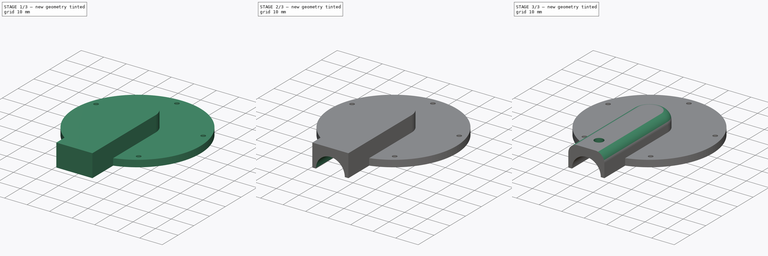
[diagram: build sequence overview — one tinted view per stage of 3, left to right]
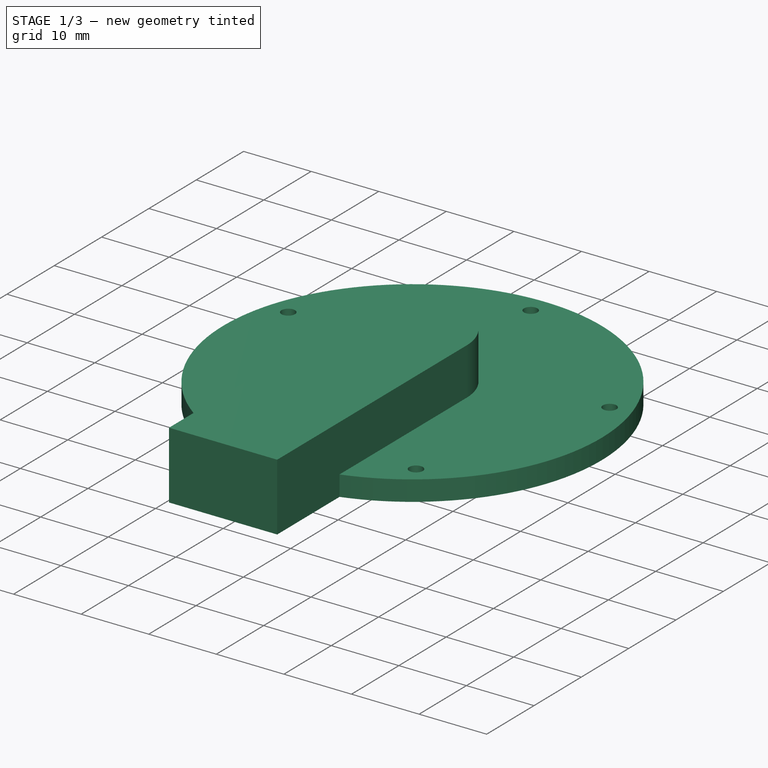
[diagram: stage 1 of 3 — iso view after this stage's code; geometry added in this stage tinted green]
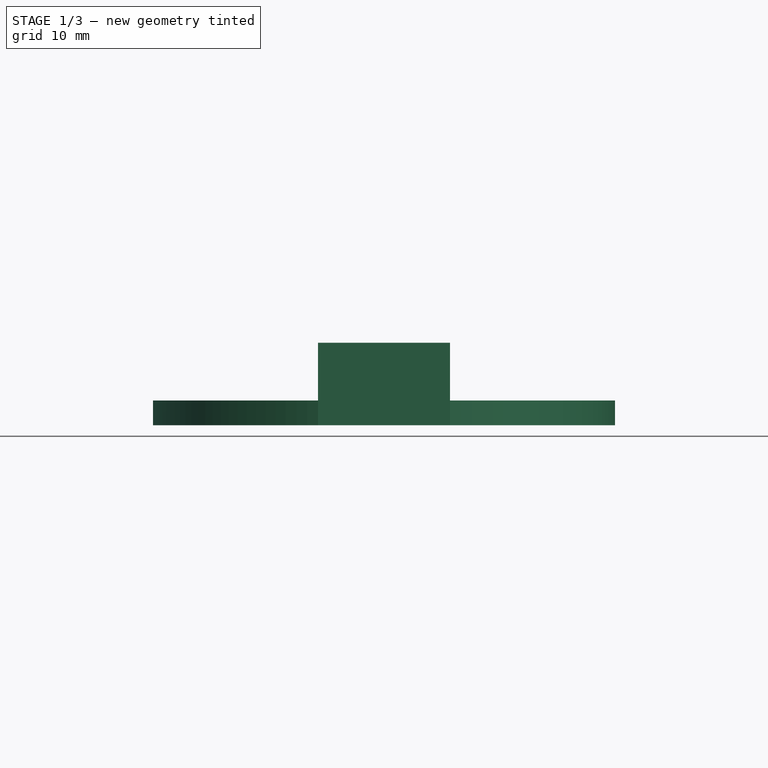
[diagram: stage 1 of 3 — front view after this stage's code; geometry added in this stage tinted green]
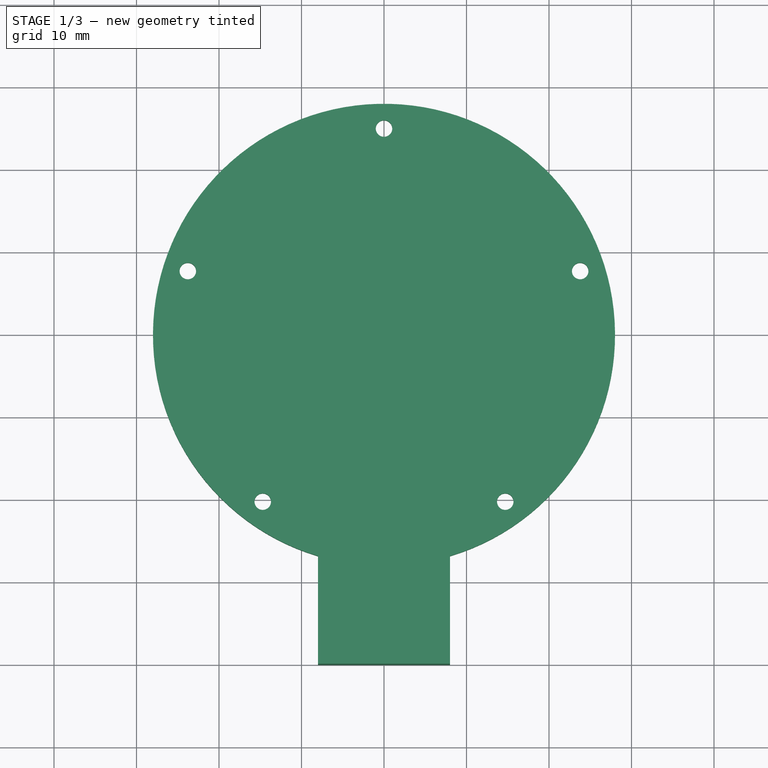
[diagram: stage 1 of 3 — top view after this stage's code; geometry added in this stage tinted green]
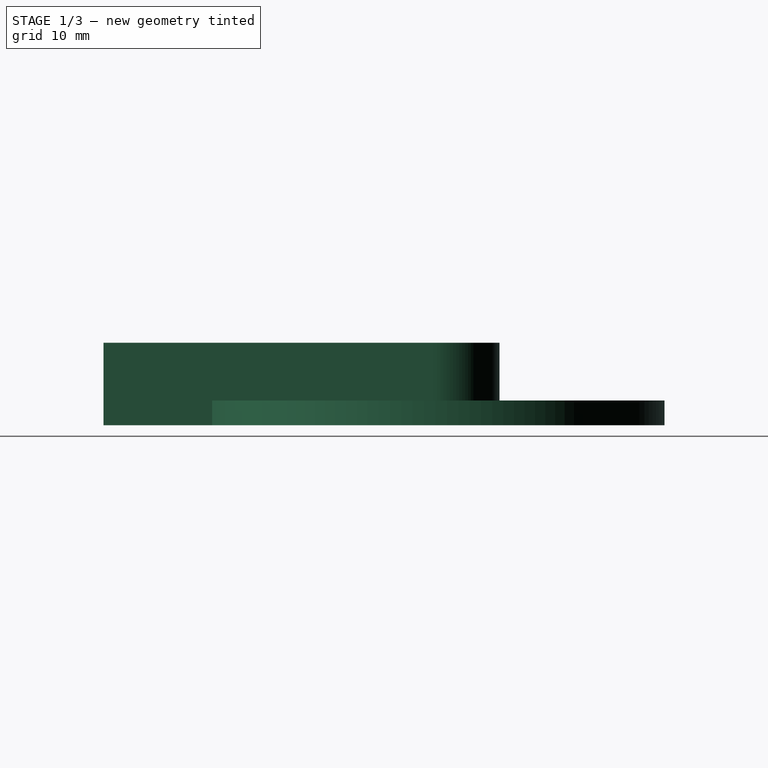
[diagram: stage 1 of 3 — right view after this stage's code; geometry added in this stage tinted green]
FCSTD DOCUMENT  (FreeCAD 0.19R24276 (Git))
Label: piezo_reproducer_partB_v0.5
License: All rights reserved
LicenseURL: http://en.wikipedia.org/wiki/All_rights_reserved
objects: Sketcher::SketchObject×4, PartDesign::Pad×2, PartDesign::Pocket×2, PartDesign::Chamfer×1, PartDesign::Fillet×1, PartDesign::Body×1, App::Part×1
note: 17 computed .brp shape members not serialized (recipe doc carries the construction recipe); baked Part::Feature solids carry a one-line shape summary decoded from their .brp

FEATURE [Sketcher::SketchObject] Sketch
  FullyConstrained = false
  MapMode = 5
  Support = -> [XY_Plane001]
  sketch-geometry (18):
    g0: LineSegment StartX=-8 StartY=-40 StartZ=0 EndX=8 EndY=-40 EndZ=0
    g1: LineSegment StartX=8 StartY=-40 StartZ=0 EndX=8 EndY=-26.8328 EndZ=0
    g2: LineSegment StartX=8 StartY=-26.8328 StartZ=0 EndX=-8 EndY=-26.8328 EndZ=0
    g3: LineSegment StartX=-8 StartY=-26.8328 StartZ=0 EndX=-8 EndY=-40 EndZ=0
    g4: ArcOfCircle CenterX=0 CenterY=0 CenterZ=0 NormalX=0 NormalY=0 NormalZ=1 AngleXU=0 Radius=28 StartAngle=5.00214 EndAngle=10.7058
    g5: Circle CenterX=0 CenterY=0 CenterZ=0 NormalX=0 NormalY=0 NormalZ=1 AngleXU=0 Radius=25
    g6: Circle CenterX=1.1e-15 CenterY=25 CenterZ=0 NormalX=0 NormalY=0 NormalZ=1 AngleXU=0 Radius=1
    g7: Circle CenterX=-23.7764 CenterY=7.72542 CenterZ=0 NormalX=0 NormalY=0 NormalZ=1 AngleXU=0 Radius=1
    g8: Circle CenterX=-14.6946 CenterY=-20.2254 CenterZ=0 NormalX=0 NormalY=0 NormalZ=1 AngleXU=0 Radius=1
    g9: Circle CenterX=14.6946 CenterY=-20.2254 CenterZ=0 NormalX=0 NormalY=0 NormalZ=1 AngleXU=0 Radius=1
    g10: Circle CenterX=23.7764 CenterY=7.72542 CenterZ=0 NormalX=0 NormalY=0 NormalZ=1 AngleXU=0 Radius=1
    g11: LineSegment StartX=14.6946 StartY=-20.2254 StartZ=0 EndX=-14.6946 EndY=-20.2254 EndZ=0
    g12: LineSegment StartX=-23.7764 StartY=7.72542 StartZ=0 EndX=-14.6946 EndY=-20.2254 EndZ=0
    g13: LineSegment StartX=0 StartY=25 StartZ=0 EndX=-23.7764 EndY=7.72542 EndZ=0
    g14: LineSegment StartX=23.7764 StartY=7.72542 StartZ=0 EndX=0 EndY=25 EndZ=0
    g15: LineSegment StartX=1.1e-15 StartY=25 StartZ=0 EndX=23.7764 EndY=7.72542 EndZ=0
    g16: LineSegment StartX=1.1e-15 StartY=25 StartZ=0 EndX=23.7764 EndY=7.72542 EndZ=0
    g17: LineSegment StartX=14.6946 StartY=-20.2254 StartZ=0 EndX=23.7764 EndY=7.72542 EndZ=0
  constraints (41):
    c: Coincident(g0,g1)
    c: Coincident(g1,g2)
    c: Coincident(g2,g3)
    c: Coincident(g3,g0)
    c: Horizontal(g2)
    c: Vertical(g1)
    c: Symmetric(g0,g0,g-2)
    c: DistanceX(g2,g2) = 16
    c: Radius(g4) = 28
    c: Coincident(g3,g4)
    c: Coincident(g1,g4)
    c: DistanceY(g0,g4) = 40
    c: Coincident(g5,g4)
    c: Radius(g5) = 25
    c: PointOnObject(g6,g5)
    c: Coincident(g4,g-1)
    c: PointOnObject(g7,g5)
    c: PointOnObject(g8,g5)
    c: PointOnObject(g9,g5)
    c: PointOnObject(g10,g5)
    c: Radius(g9) = 1
    c: Equal(g9,g8)
    c: Equal(g9,g7)
    c: Equal(g9,g6)
    c: Equal(g9,g10)
    c: Coincident(g11,g9)
    c: Coincident(g11,g8)
    c: Coincident(g12,g7)
    c: Coincident(g12,g8)
    c: Coincident(g13,g7)
    c: Coincident(g15,g6)
    c: Coincident(g16,g6)
    c: Coincident(g16,g10)
    c: Coincident(g17,g9)
    c: Coincident(g17,g10)
    c: Equal(g17,g11)
    c: Equal(g11,g12)
    c: Equal(g12,g13)
    c: Equal(g13,g14)
    c: Equal(g14,g16)
    c: Equal(g16,g15)
FEATURE [PartDesign::Pad] Pad
  Direction = (1,1,1)
  Length = 3
  Length2 = 100
  Profile = -> Sketch
  Type = 0
FEATURE [Sketcher::SketchObject] Sketch001
  ExternalGeometry = -> [Pad]
  FullyConstrained = false
  MapMode = 5
  Placement = pos=(0,0,3) rot=(0,0,1;0rad)
  Support = -> [Pad]
  sketch-geometry (4):
    g0: LineSegment StartX=-8 StartY=-40 StartZ=0 EndX=8 EndY=-40 EndZ=0
    g1: LineSegment StartX=8 StartY=-40 StartZ=0 EndX=8 EndY=0 EndZ=0
    g2: LineSegment StartX=-8 StartY=1e-15 StartZ=0 EndX=-8 EndY=-40 EndZ=0
    g3: ArcOfCircle CenterX=0 CenterY=0 CenterZ=0 NormalX=0 NormalY=0 NormalZ=1 AngleXU=0 Radius=8 StartAngle=0 EndAngle=3.14159
  constraints (8):
    c: Coincident(g0,g1)
    c: Coincident(g2,g0)
    c: Vertical(g1)
    c: Coincident(g0,g-3)
    c: PointOnObject(g1,g-1)
    c: Coincident(g0,g-4)
    c: Coincident(g3,g-1)
    c: Coincident(g3,g1)
FEATURE [PartDesign::Pad] Pad001
  BaseFeature = -> Pad
  Direction = (1,1,1)
  Length = 7
  Length2 = 100
  Profile = -> Sketch001
  Type = 0
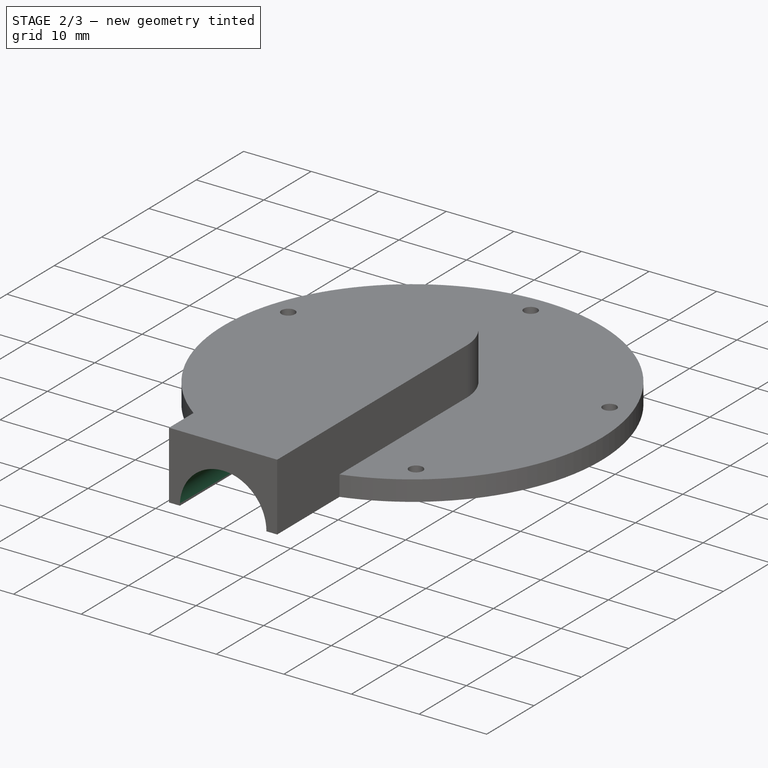
[diagram: stage 2 of 3 — iso view after this stage's code; geometry added in this stage tinted green]
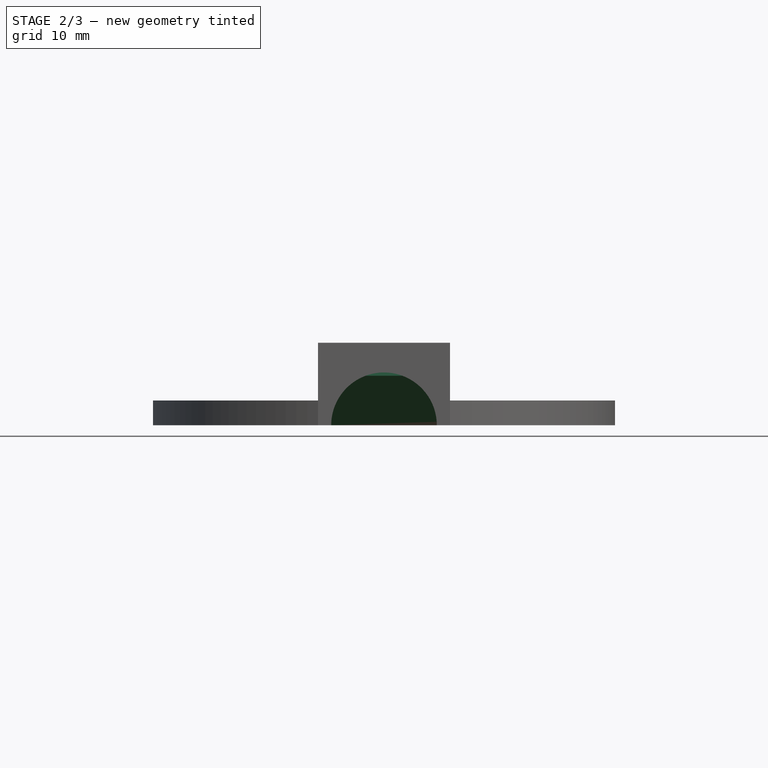
[diagram: stage 2 of 3 — front view after this stage's code; geometry added in this stage tinted green]
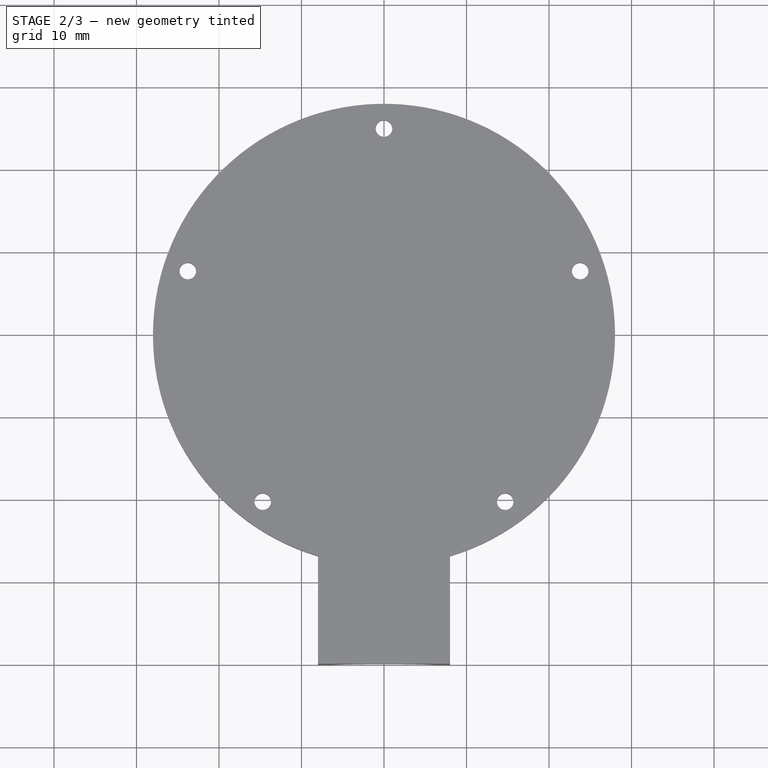
[diagram: stage 2 of 3 — top view after this stage's code; geometry added in this stage tinted green]
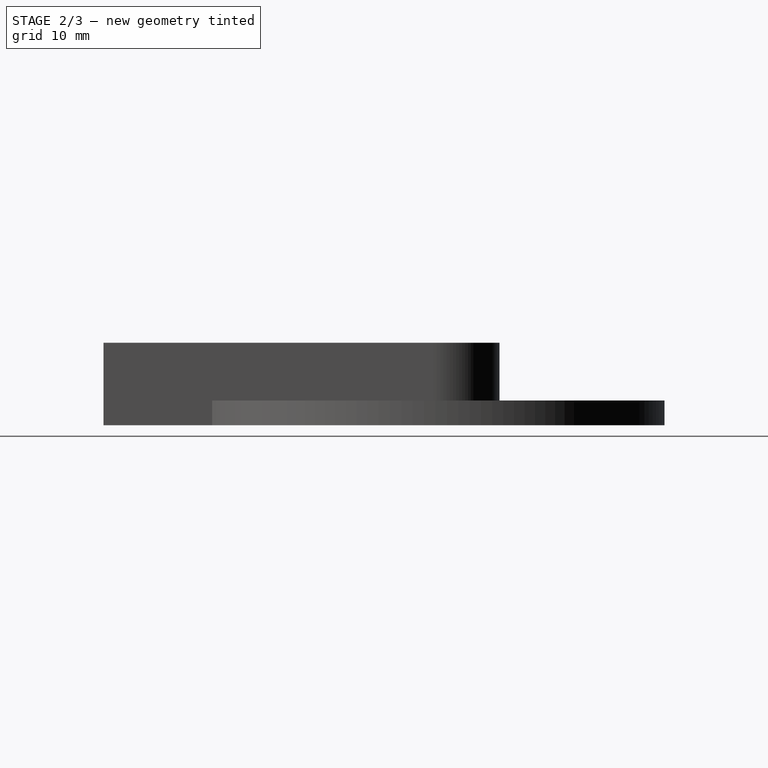
[diagram: stage 2 of 3 — right view after this stage's code; geometry added in this stage tinted green]
FEATURE [Sketcher::SketchObject] Sketch002
  FullyConstrained = true
  MapMode = 5
  Placement = pos=(0,-40,0) rot=(1,0,0;1.5708rad)
  Support = -> [Pad001]
  sketch-geometry (1):
    g0: Circle CenterX=0 CenterY=0 CenterZ=0 NormalX=0 NormalY=0 NormalZ=1 AngleXU=0 Radius=6.4
  constraints (2):
    c: Coincident(g0,g-1)
    c: Radius(g0) = 6.4
FEATURE [PartDesign::Pocket] Pocket
  BaseFeature = -> Pad001
  Length = 40
  Length2 = 100
  Profile = -> Sketch002
  Type = 0
FEATURE [PartDesign::Chamfer] Chamfer
  Angle = 45
  Base = -> Pocket [Edge6]
  BaseFeature = -> Pocket
  ChamferType = 0
  FlipDirection = false
  Size = 6
  Size2 = 1
  SupportTransform = false
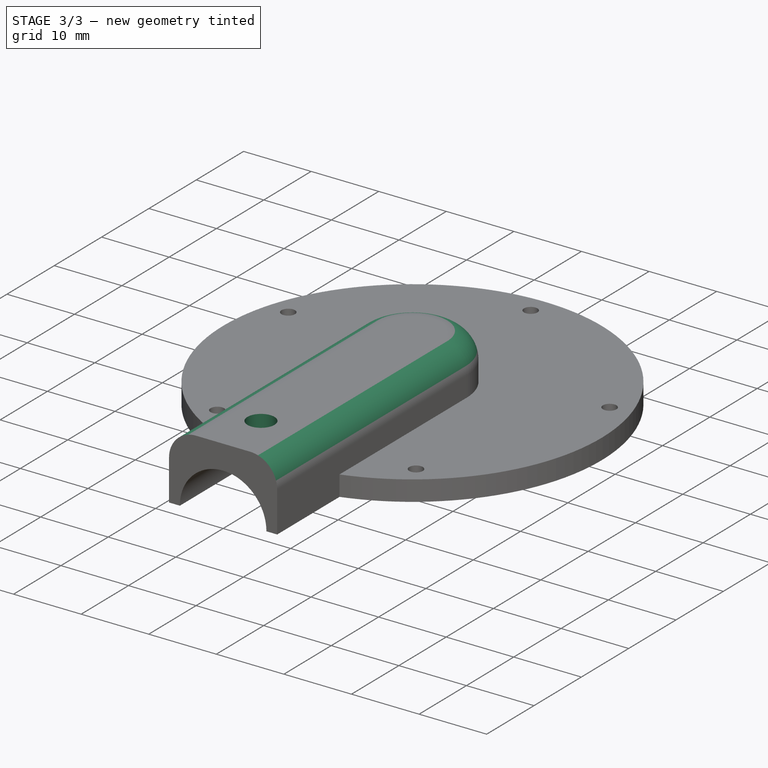
[diagram: stage 3 of 3 — iso view after this stage's code; geometry added in this stage tinted green]
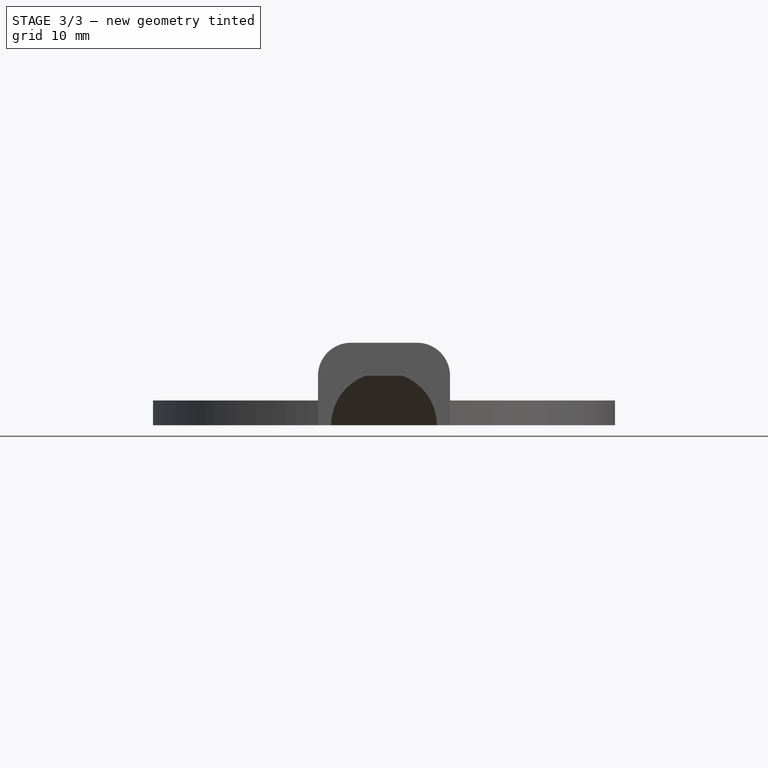
[diagram: stage 3 of 3 — front view after this stage's code; geometry added in this stage tinted green]
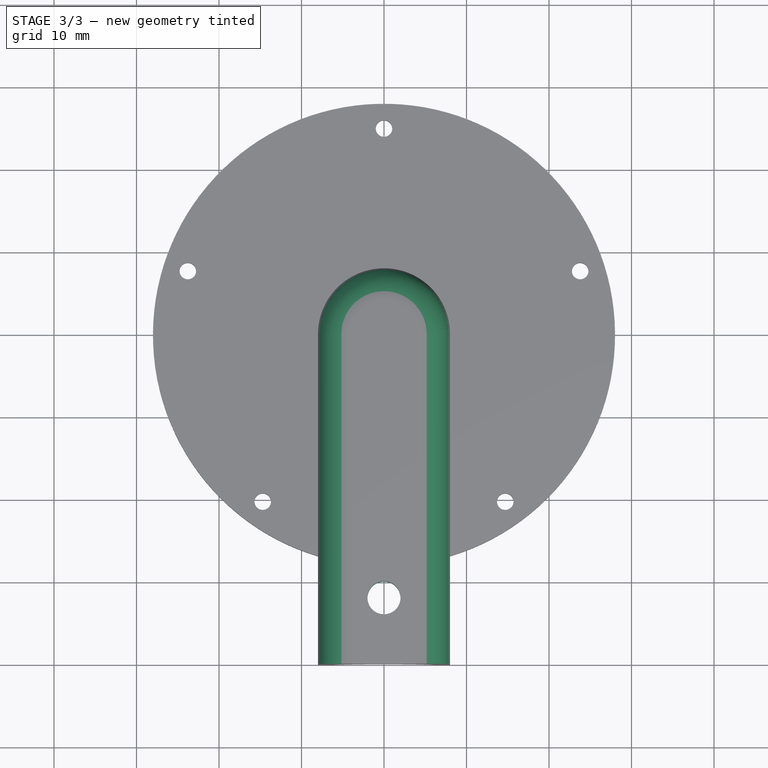
[diagram: stage 3 of 3 — top view after this stage's code; geometry added in this stage tinted green]
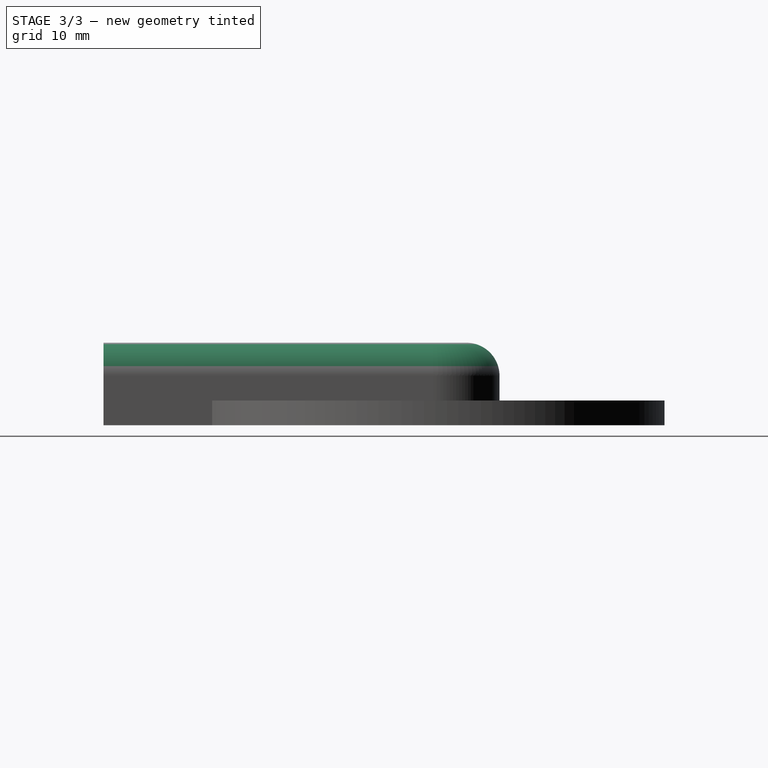
[diagram: stage 3 of 3 — right view after this stage's code; geometry added in this stage tinted green]
FEATURE [Sketcher::SketchObject] Sketch003
  FullyConstrained = true
  MapMode = 5
  Placement = pos=(0,0,10) rot=(0,0,1;0rad)
  Support = -> [Chamfer]
  sketch-geometry (1):
    g0: Circle CenterX=0 CenterY=-32 CenterZ=0 NormalX=0 NormalY=0 NormalZ=1 AngleXU=0 Radius=2
  constraints (3):
    c: PointOnObject(g0,g-2)
    c: DistanceY(g0,g-1) = 32
    c: Radius(g0) = 2
FEATURE [PartDesign::Pocket] Pocket001
  BaseFeature = -> Chamfer
  Length = 5
  Length2 = 100
  Profile = -> Sketch003
  Type = 0
FEATURE [PartDesign::Fillet] Fillet
  Base = -> Pocket001 [Edge50,Edge54,Edge55]
  BaseFeature = -> Pocket001
  Radius = 4
  SupportTransform = false
FEATURE [PartDesign::Body] Fillet002Body  label="case"
  Group = -> [Sketch,Pad,Sketch001,Pad001,Sketch002,Pocket,Chamfer,Sketch003,Pocket001,Fillet]
  Origin = -> Origin001
  Tip = -> Fillet
FEATURE [App::Part] Part
  Group = -> [Fillet002Body]
  Origin = -> Origin
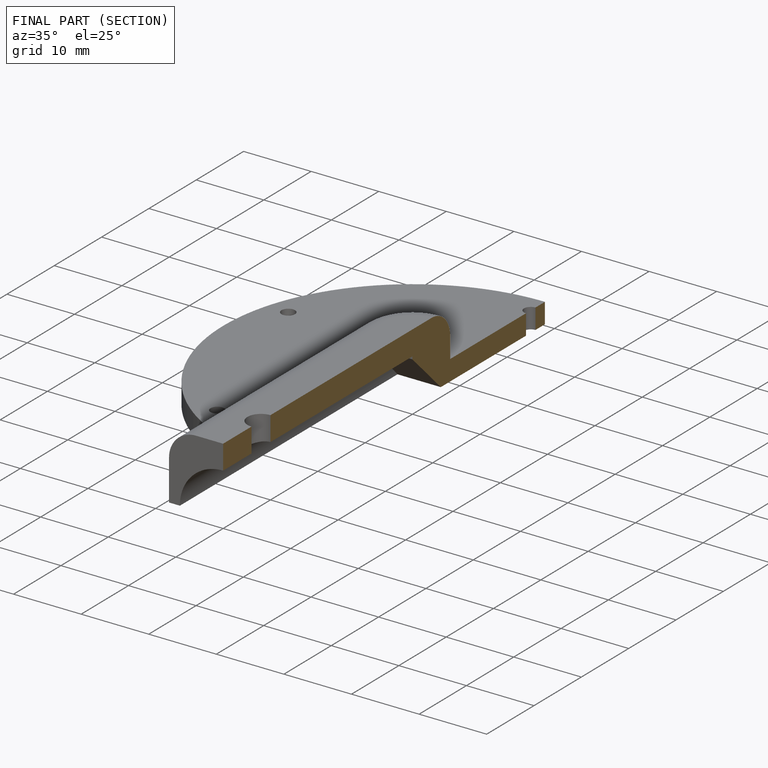
[diagram: finished part — half-section view (interior)]
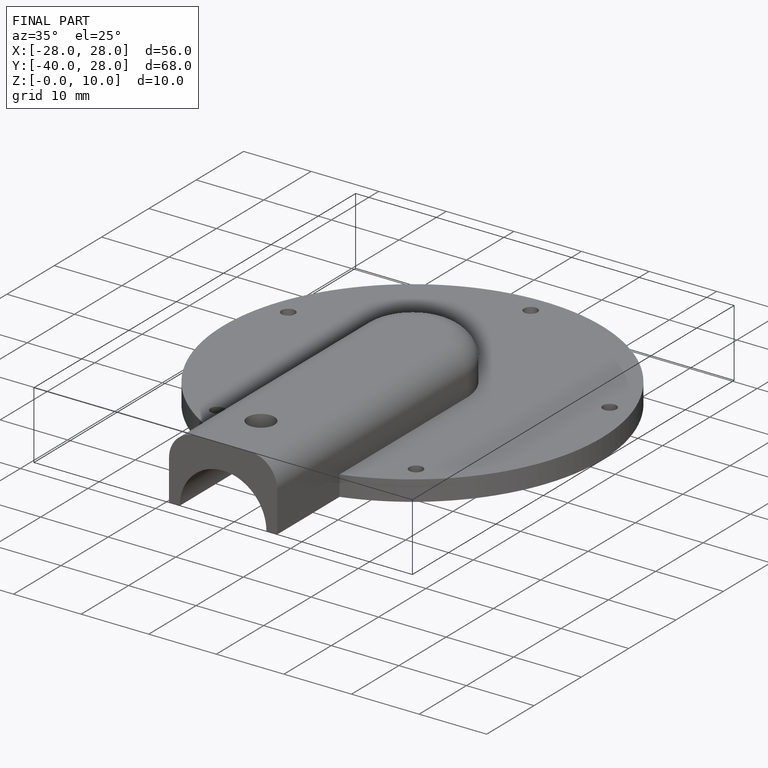
[diagram: finished part — iso view with bounding-box wireframe]
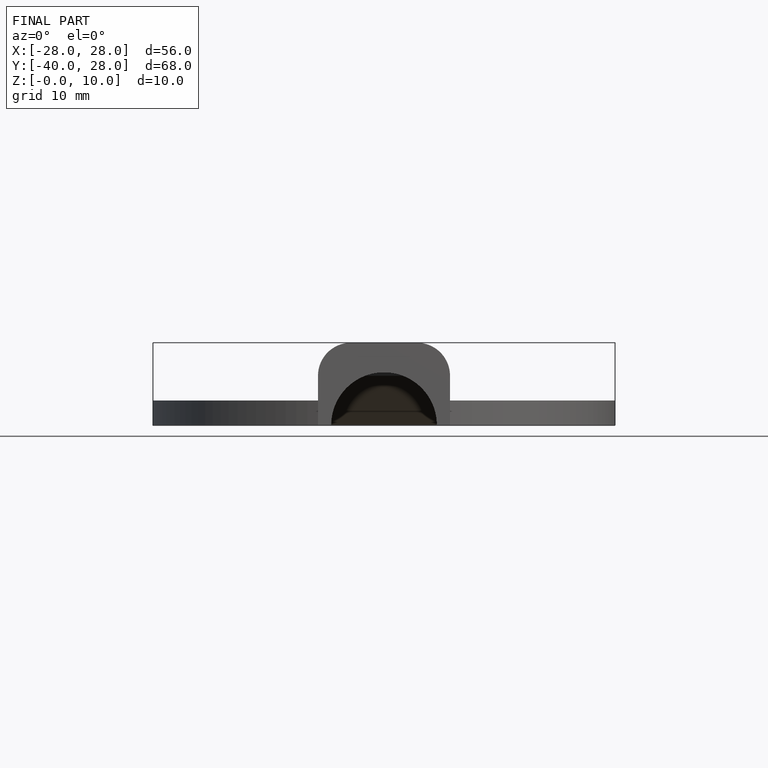
[diagram: finished part — front view with bounding-box wireframe]
